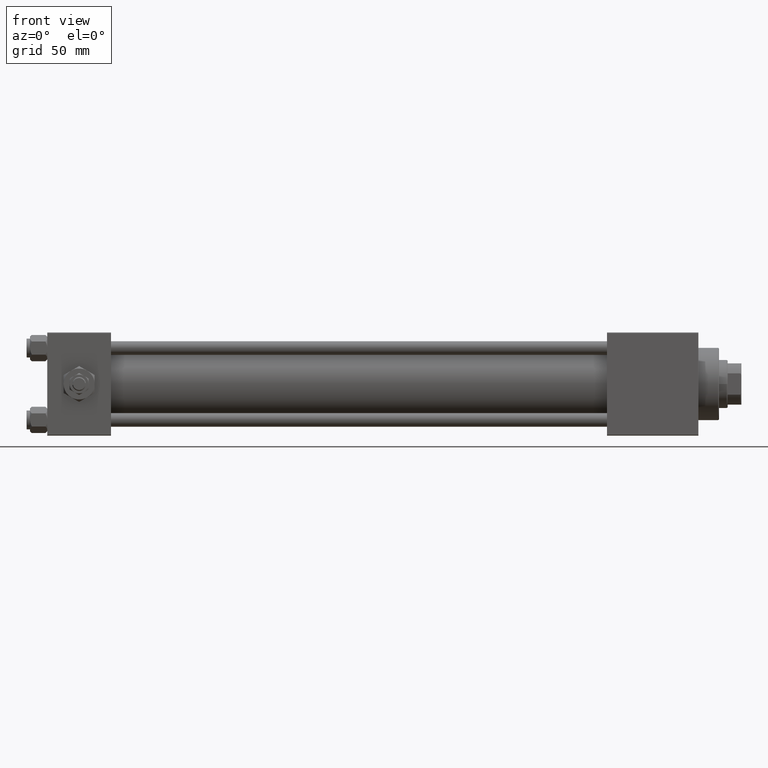
[diagram: clean part render]
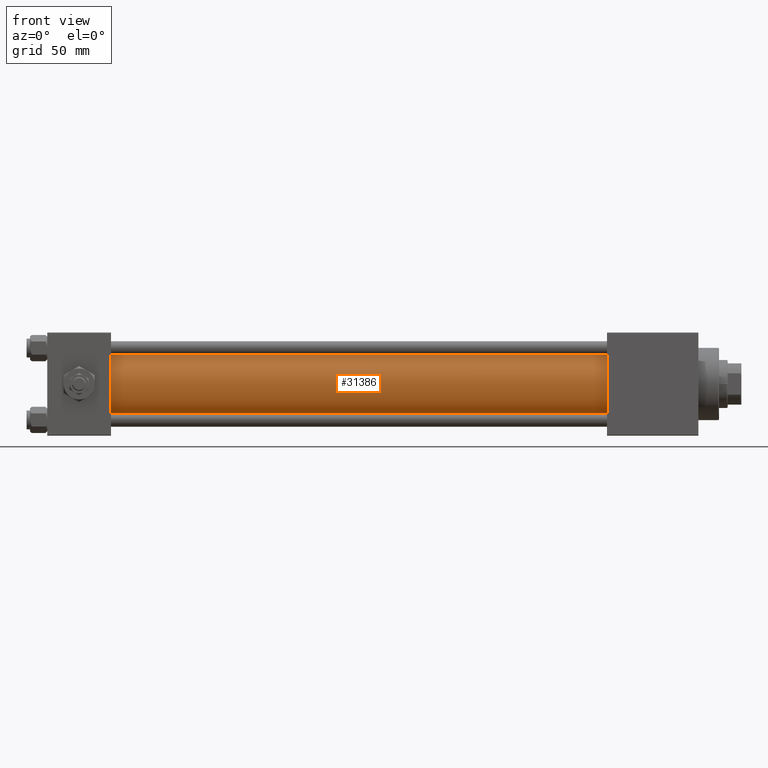
[diagram: same view with one face highlighted and labeled with its STEP entity id]
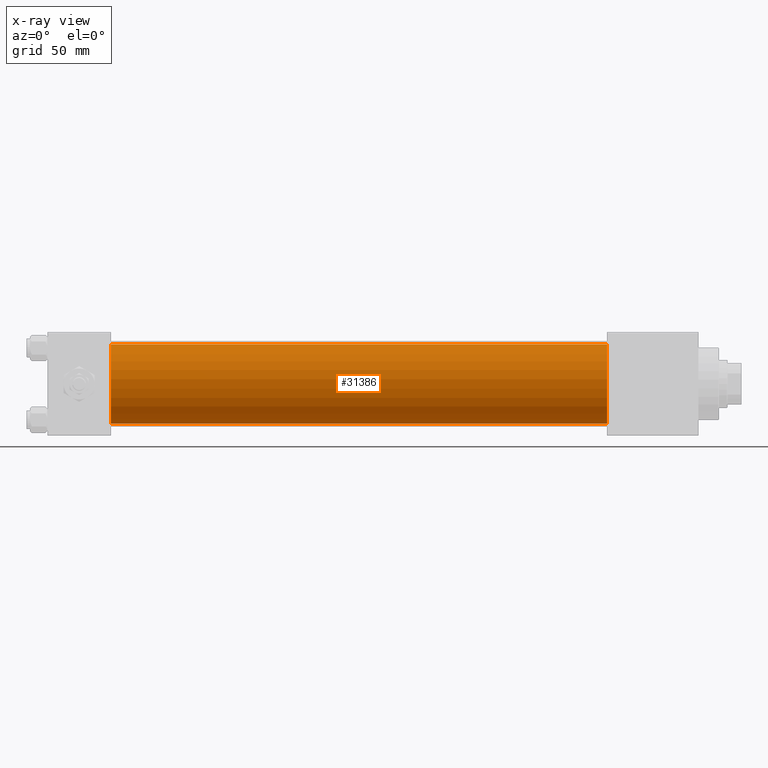
[diagram: x-ray of the same camera — body ghosted, the highlighted face saturated]
A machine part, front view. The second image highlights one B-rep face of the part: STEP entity #31386.
The next image is the same camera in x-ray: the body ghosted, the highlighted face saturated — about 0% of this face is hidden behind the body in this view.
In plain terms, the highlighted cylindrical surface (partial cylindrical patch) has radius 23 mm, axis along (-1, -0, -0).
Its self-contained STEP definition (entity closure, byte-faithful):
#1635 = VERTEX_POINT ( 'NONE', #47979 ) ;
#3689 = DIRECTION ( 'NONE',  ( 0.000000000000000000, 0.000000000000000000, -1.000000000000000000 ) ) ;
#6830 = DIRECTION ( 'NONE',  ( 0.000000000000000000, 0.000000000000000000, 1.000000000000000000 ) ) ;
#7628 = CARTESIAN_POINT ( 'NONE',  ( 324.9999999999999432, -2.602085213965210642E-15, 0.000000000000000000 ) ) ;
#7861 = VERTEX_POINT ( 'NONE', #38107 ) ;
#12754 = DIRECTION ( 'NONE',  ( -1.000000000000000000, -0.000000000000000000, -0.000000000000000000 ) ) ;
#14189 = CARTESIAN_POINT ( 'NONE',  ( 324.9999999999999432, -2.602085213965210642E-15, 0.000000000000000000 ) ) ;
#15592 = VECTOR ( 'NONE', #12754, 1000.000000000000000 ) ;
#16595 = DIRECTION ( 'NONE',  ( 0.000000000000000000, 0.000000000000000000, 1.000000000000000000 ) ) ;
#17113 = DIRECTION ( 'NONE',  ( 1.000000000000000000, -0.000000000000000000, 0.000000000000000000 ) ) ;
#17675 = ORIENTED_EDGE ( 'NONE', *, *, #20589, .T. ) ;
#17996 = ORIENTED_EDGE ( 'NONE', *, *, #51222, .F. ) ;
#18701 = ORIENTED_EDGE ( 'NONE', *, *, #50142, .F. ) ;
#19202 = AXIS2_PLACEMENT_3D ( 'NONE', #36286, #17113, #16595 ) ;
#20589 = EDGE_CURVE ( 'NONE', #1635, #7861, #36763, .T. ) ;
#25991 = CYLINDRICAL_SURFACE ( 'NONE', #34754, 23.00000000000000000 ) ;
#26085 = VECTOR ( 'NONE', #34923, 1000.000000000000000 ) ;
#26113 = AXIS2_PLACEMENT_3D ( 'NONE', #7628, #51730, #3689 ) ;
#30196 = DIRECTION ( 'NONE',  ( -1.000000000000000000, -0.000000000000000000, -0.000000000000000000 ) ) ;
#30987 = CARTESIAN_POINT ( 'NONE',  ( 324.9999999999999432, 2.146024240737016609E-16, -23.00000000000000000 ) ) ;
#31386 = ADVANCED_FACE ( 'NONE', ( #33865 ), #25991, .T. ) ;
#32017 = CARTESIAN_POINT ( 'NONE',  ( 324.9999999999999432, 2.146024240737016609E-16, -23.00000000000000000 ) ) ;
#33650 = CIRCLE ( 'NONE', #26113, 23.00000000000000000 ) ;
#33865 = FACE_OUTER_BOUND ( 'NONE', #50271, .T. ) ;
#34754 = AXIS2_PLACEMENT_3D ( 'NONE', #14189, #30196, #6830 ) ;
#34923 = DIRECTION ( 'NONE',  ( -1.000000000000000000, -0.000000000000000000, -0.000000000000000000 ) ) ;
#35559 = CARTESIAN_POINT ( 'NONE',  ( 324.9999999999999432, -2.602085213965210642E-15, 23.00000000000000000 ) ) ;
#36286 = CARTESIAN_POINT ( 'NONE',  ( 36.99999999999997868, -2.602085213965210642E-15, 0.000000000000000000 ) ) ;
#36763 = CIRCLE ( 'NONE', #19202, 23.00000000000000000 ) ;
#37161 = VERTEX_POINT ( 'NONE', #35559 ) ;
#37917 = LINE ( 'NONE', #45526, #15592 ) ;
#38107 = CARTESIAN_POINT ( 'NONE',  ( 36.99999999999997868, 2.146024240737016609E-16, -23.00000000000000000 ) ) ;
#38738 = EDGE_CURVE ( 'NONE', #37161, #1635, #37917, .T. ) ;
#39121 = LINE ( 'NONE', #32017, #26085 ) ;
#42247 = ORIENTED_EDGE ( 'NONE', *, *, #38738, .T. ) ;
#45526 = CARTESIAN_POINT ( 'NONE',  ( 324.9999999999999432, -2.602085213965210642E-15, 23.00000000000000000 ) ) ;
#47979 = CARTESIAN_POINT ( 'NONE',  ( 36.99999999999997868, -2.602085213965210642E-15, 23.00000000000000000 ) ) ;
#50142 = EDGE_CURVE ( 'NONE', #51379, #7861, #39121, .T. ) ;
#50271 = EDGE_LOOP ( 'NONE', ( #18701, #17996, #42247, #17675 ) ) ;
#51222 = EDGE_CURVE ( 'NONE', #37161, #51379, #33650, .T. ) ;
#51379 = VERTEX_POINT ( 'NONE', #30987 ) ;
#51730 = DIRECTION ( 'NONE',  ( 1.000000000000000000, 0.000000000000000000, 0.000000000000000000 ) ) ;